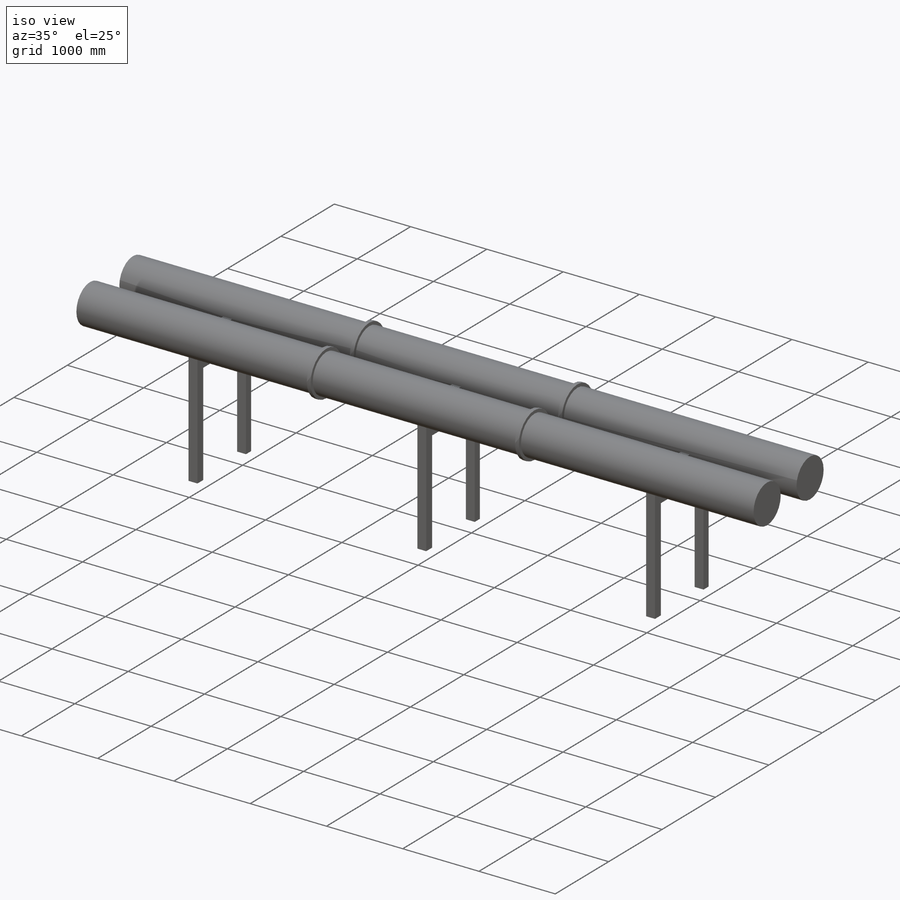
[diagram: iso view]
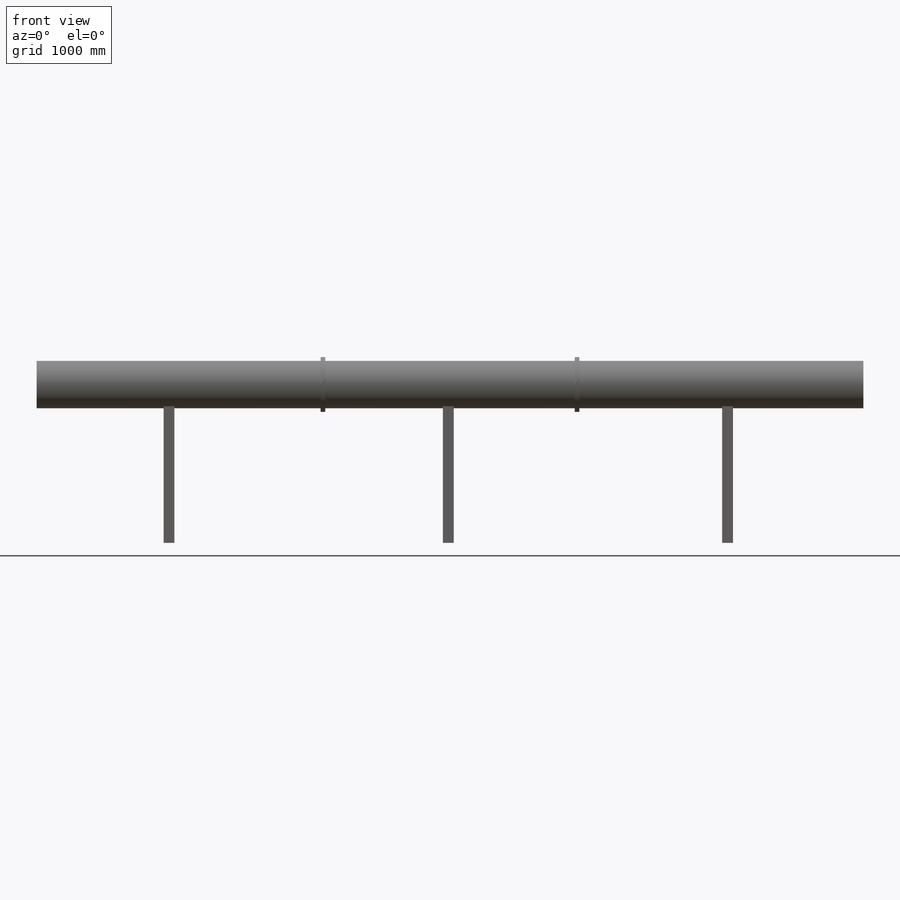
[diagram: front view]
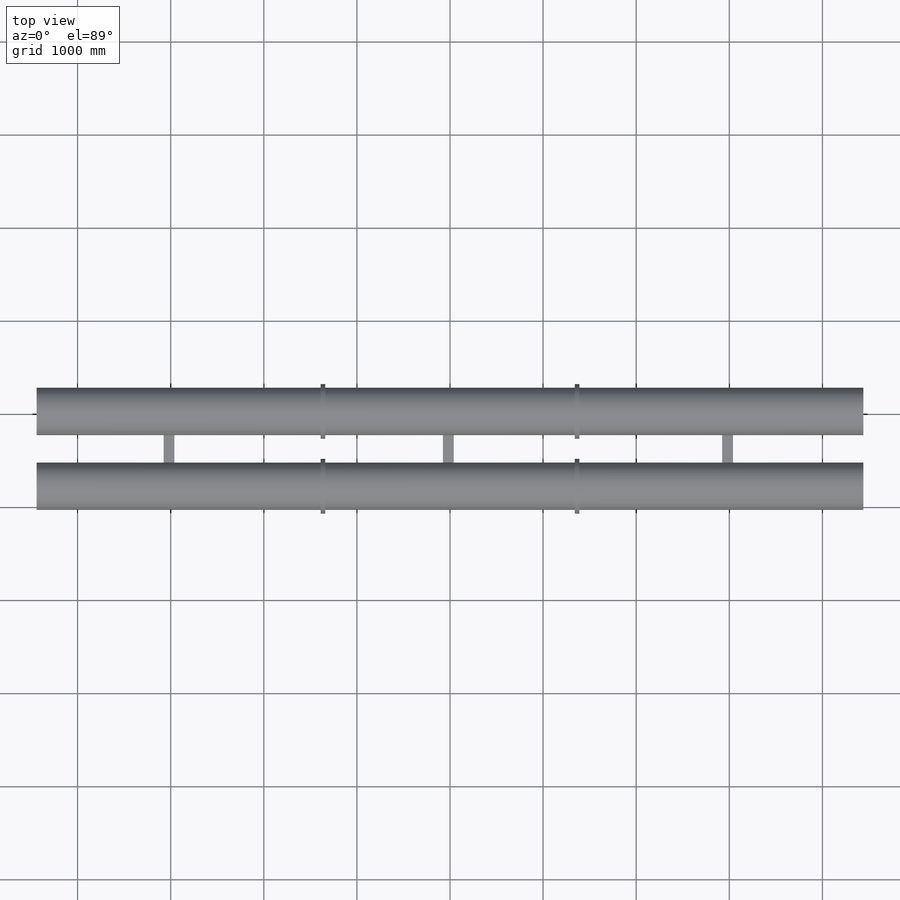
[diagram: top view]
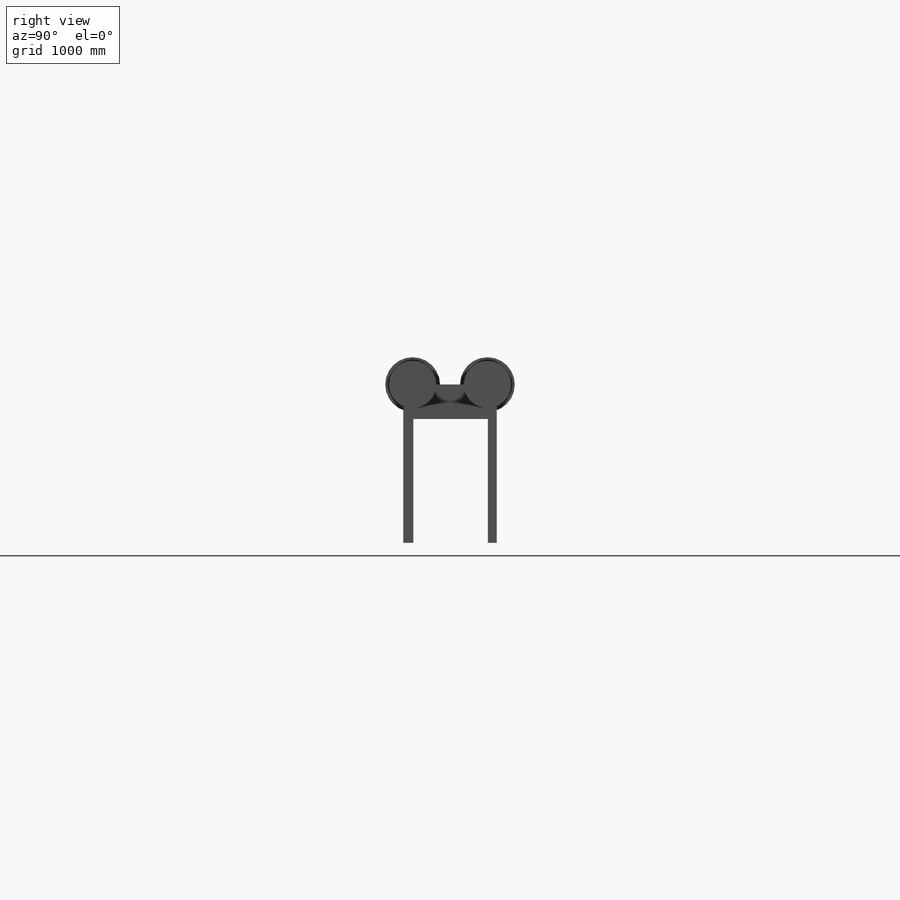
[diagram: right view]
SOLIDWORKS PART (.sldprt)
format: sldprt  version: not decoded by parser v0  size: 304,128 bytes
history: native  units: mm
features: sketch x3, material x1, revolve x1, extrude x1, pattern_linear x1, cut_extrude x1, shell x1 (+16 scaffold rows collapsed)
feature tree (25):
  scaffold x16  (default folders/planes/origin — collapsed)
  material  "Material <not specified>"
  sketch  "Sketch1"  dims[D1=50.0mm D2=40.0mm D3=50.0mm D4=40.0mm D5=4440.0mm D6=3000.0mm D7=508.0mm D8=200.0mm]
  revolve  "Revolve1"  Angle=360deg
  sketch  "Sketch2"  dims[D1=1400.0mm D2=100.0mm D3=1004.0mm]
  extrude  "Extrude1"  Depth=1910mm
  pattern_linear  "LPattern1"  Count1=2 Count2=1 Spacing1=804mm Spacing2=10mm
  sketch  "Sketch3"  dims[D1=1600.0mm]
  cut_extrude  "Extrude2"  [1 undecoded]
  shell  "Shell1"  Thickness=10mm
decode coverage: 7 of 8 modeling features carry decoded parameters
note: 1 parameter value undecoded
note: suppression state not decoded; provenance and decode notes live in map.json
